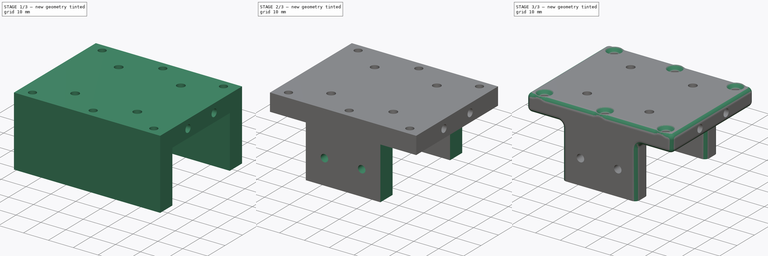
[diagram: build sequence overview — one tinted view per stage of 3, left to right]
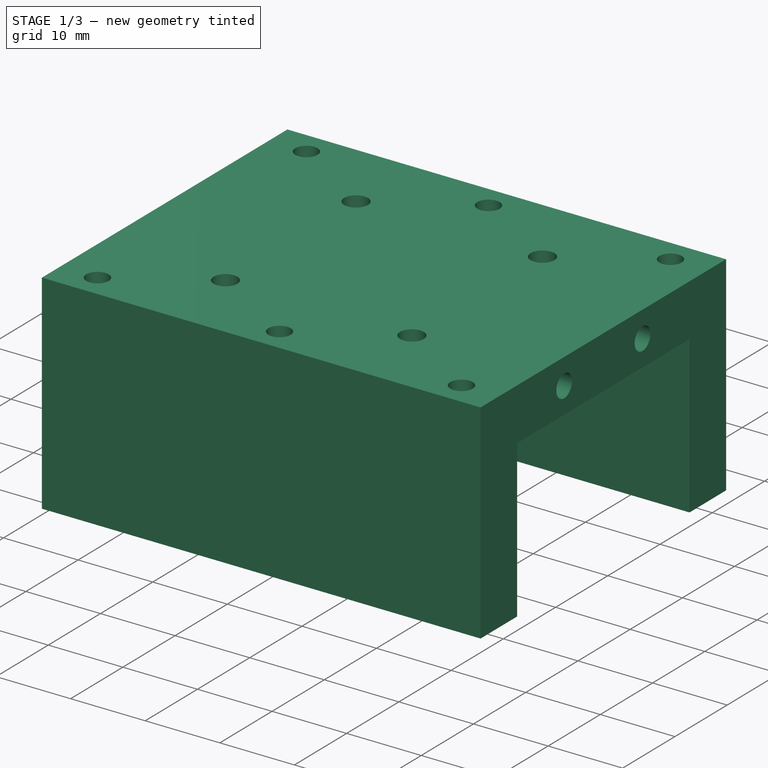
[diagram: stage 1 of 3 — iso view after this stage's code; geometry added in this stage tinted green]
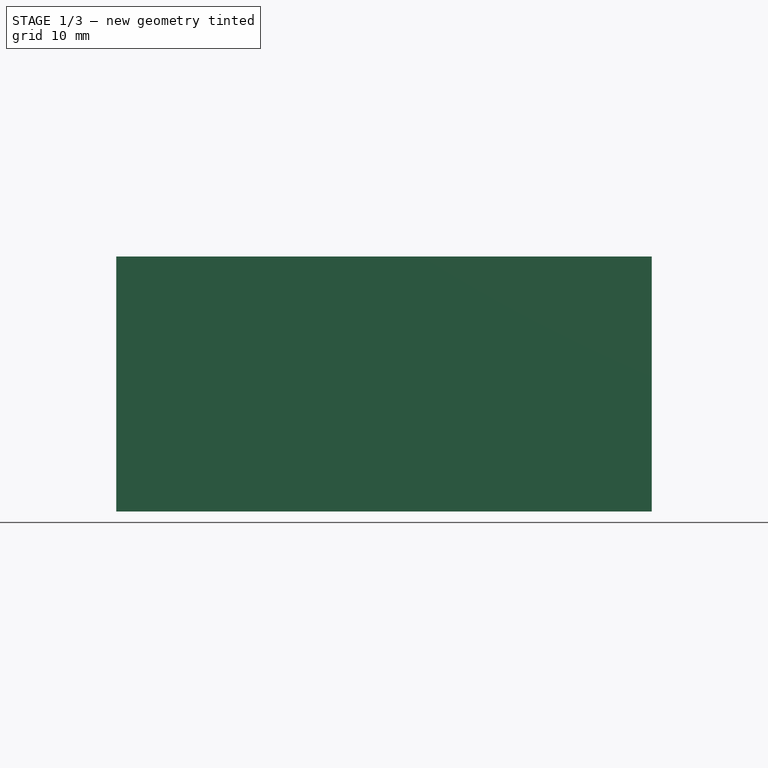
[diagram: stage 1 of 3 — front view after this stage's code; geometry added in this stage tinted green]
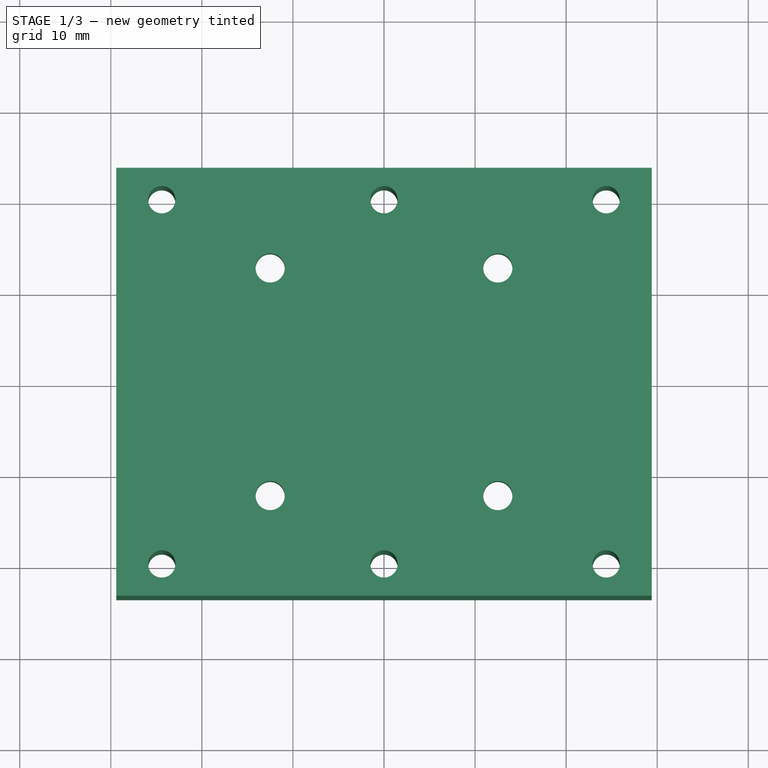
[diagram: stage 1 of 3 — top view after this stage's code; geometry added in this stage tinted green]
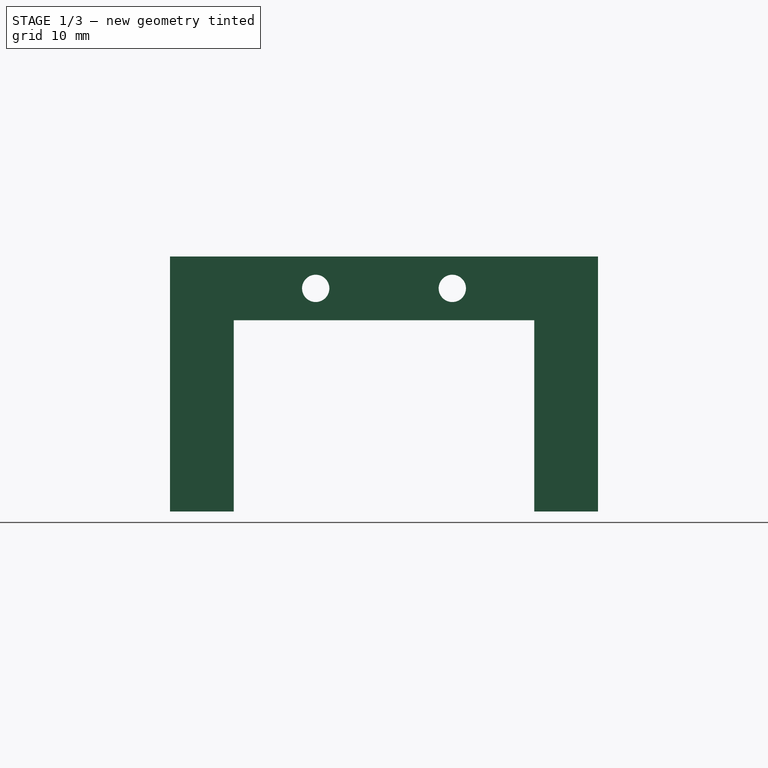
[diagram: stage 1 of 3 — right view after this stage's code; geometry added in this stage tinted green]
FCSTD DOCUMENT  (FreeCAD 1.1R38794 (Git))
Label: z_holder_2
License: All rights reserved
LicenseURL: https://en.wikipedia.org/wiki/All_rights_reserved
objects: Sketcher::SketchObject×4, PartDesign::Pocket×3, App::Link×1, PartDesign::Pad×1, PartDesign::Chamfer×1, PartDesign::Fillet×1, PartDesign::Body×1
note: 27 computed .brp shape members not serialized (recipe doc carries the construction recipe); baked Part::Feature solids carry a one-line shape summary decoded from their .brp
EXTERNAL_REF file=Masterfile.FCStd obj=Spreadsheet

FEATURE [App::Link] Link  label="LinkDimensions"
  LinkedObject = -> <external Masterfile.FCStd>#Spreadsheet
FEATURE [Sketcher::SketchObject] Sketch
  ArcFitTolerance = 1e-06
  AttachmentSupport = -> [XY_Plane]
  FullyConstrained = true
  MakeInternals = false
  MapMode = 5
  expr: Constraints[19] = <<LinkDimensions>>.railCarrierHandle
  expr: Constraints[20] = <<LinkDimensions>>.railCarrierHandle
  expr: Constraints[25] = <<LinkDimensions>>.drillDiameter + 0.2
  expr: Constraints[39] = <<LinkDimensions>>.zhThickness / 2
  expr: Constraints[44] = <<LinkDimensions>>.drillDiameter
  expr: Constraints[8] = <<LinkDimensions>>.zhOutherLength
  expr: Constraints[9] = <<LinkDimensions>>.zhOutherWidth
  sketch-geometry (22):
    g0: LineSegment StartX=-29.4 StartY=23.5 StartZ=0 EndX=-29.4 EndY=-23.5 EndZ=0
    g1: LineSegment StartX=-29.4 StartY=-23.5 StartZ=0 EndX=29.4 EndY=-23.5 EndZ=0
    g2: LineSegment StartX=29.4 StartY=-23.5 StartZ=0 EndX=29.4 EndY=23.5 EndZ=0
    g3: LineSegment StartX=29.4 StartY=23.5 StartZ=0 EndX=-29.4 EndY=23.5 EndZ=0
    g4: LineSegment [constr] StartX=-12.5 StartY=12.5 StartZ=0 EndX=-12.5 EndY=-12.5 EndZ=0
    g5: LineSegment [constr] StartX=-12.5 StartY=-12.5 StartZ=0 EndX=12.5 EndY=-12.5 EndZ=0
    g6: LineSegment [constr] StartX=12.5 StartY=-12.5 StartZ=0 EndX=12.5 EndY=12.5 EndZ=0
    g7: LineSegment [constr] StartX=12.5 StartY=12.5 StartZ=0 EndX=-12.5 EndY=12.5 EndZ=0
    g8: Circle CenterX=-12.5 CenterY=12.5 CenterZ=0 NormalX=0 NormalY=0 NormalZ=1 AngleXU=0 Radius=1.6
    g9: Circle CenterX=12.5 CenterY=12.5 CenterZ=0 NormalX=0 NormalY=0 NormalZ=1 AngleXU=0 Radius=1.6
    g10: Circle CenterX=12.5 CenterY=-12.5 CenterZ=0 NormalX=0 NormalY=0 NormalZ=1 AngleXU=0 Radius=1.6
    g11: Circle CenterX=-12.5 CenterY=-12.5 CenterZ=0 NormalX=0 NormalY=0 NormalZ=1 AngleXU=0 Radius=1.6
    g12: LineSegment [constr] StartX=-24.4 StartY=20 StartZ=0 EndX=-24.4 EndY=-20 EndZ=0
    g13: LineSegment [constr] StartX=-24.4 StartY=-20 StartZ=0 EndX=24.4 EndY=-20 EndZ=0
    g14: LineSegment [constr] StartX=24.4 StartY=-20 StartZ=0 EndX=24.4 EndY=20 EndZ=0
    g15: LineSegment [constr] StartX=24.4 StartY=20 StartZ=0 EndX=-24.4 EndY=20 EndZ=0
    g16: Circle CenterX=-24.4 CenterY=20 CenterZ=0 NormalX=0 NormalY=0 NormalZ=1 AngleXU=0 Radius=1.5
    g17: Circle CenterX=24.4 CenterY=20 CenterZ=0 NormalX=0 NormalY=0 NormalZ=1 AngleXU=0 Radius=1.5
    g18: Circle CenterX=24.4 CenterY=-20 CenterZ=0 NormalX=0 NormalY=0 NormalZ=1 AngleXU=0 Radius=1.5
    g19: Circle CenterX=-24.4 CenterY=-20 CenterZ=0 NormalX=0 NormalY=0 NormalZ=1 AngleXU=0 Radius=1.5
    g20: Circle CenterX=0 CenterY=20 CenterZ=0 NormalX=0 NormalY=0 NormalZ=1 AngleXU=0 Radius=1.5
    g21: Circle CenterX=0 CenterY=-20 CenterZ=0 NormalX=0 NormalY=0 NormalZ=1 AngleXU=0 Radius=1.5
  constraints (54):
    c: Coincident(g0,g1)
    c: Coincident(g1,g2)
    c: Coincident(g2,g3)
    c: Coincident(g3,g0)
    c: Vertical(g0)
    c: Horizontal(g1)
    c: Symmetric(g0,g2,g-2)
    c: Symmetric(g2,g1,g-1)
    c: DistanceX(g3,g3) = 58.8
    c: DistanceY(g2,g2) = 47
    c: Coincident(g4,g5)
    c: Coincident(g5,g6)
    c: Coincident(g6,g7)
    c: Coincident(g7,g4)
    c: Vertical(g4)
    c: Vertical(g6)
    c: Horizontal(g5)
    c: Horizontal(g7)
    c: Symmetric(g4,g6,g-1)
    c: DistanceX(g7,g7) = 25
    c: DistanceY(g6,g6) = 25
    c: Coincident(g8,g4)
    c: Coincident(g9,g6)
    c: Coincident(g10,g5)
    c: Coincident(g11,g4)
    c: Diameter(g11) = 3.2
    c: Equal(g11,g10)
    c: Equal(g10,g9)
    c: Equal(g9,g8)
    c: Coincident(g12,g13)
    c: Coincident(g13,g14)
    c: Coincident(g14,g15)
    c: Coincident(g15,g12)
    c: Vertical(g12)
    c: Vertical(g14)
    c: Horizontal(g13)
    c: Horizontal(g15)
    c: Symmetric(g12,g14,g-1)
    c: DistanceX(g0,g12) = 5
    c: DistanceY(g14,g2) = 3.5
    c: Coincident(g16,g12)
    c: Coincident(g17,g14)
    c: Coincident(g18,g13)
    c: Coincident(g19,g12)
    c: Diameter(g19) = 3
    c: Equal(g19,g18)
    c: Equal(g18,g16)
    c: Equal(g16,g17)
    c: PointOnObject(g20,g-2)
    c: PointOnObject(g21,g-2)
    c: Equal(g20,g21)
    c: Equal(g21,g18)
    c: PointOnObject(g21,g13)
    c: PointOnObject(g20,g15)
FEATURE [PartDesign::Pad] Pad
  Direction = (0,0,1)
  Length = 28
  Length2 = 10
  Profile = -> Sketch
  ReferenceAxis = -> Sketch [N_Axis]
  Refine = true
  Suppressed = false
  Type = 0
  expr: Length = <<LinkDimensions>>.zhThickness + 21
FEATURE [Sketcher::SketchObject] Sketch001
  ArcFitTolerance = 1e-06
  AttachmentSupport = -> [Pad]
  ExternalGeometry = -> [Pad]
  FullyConstrained = false
  MakeInternals = false
  MapMode = 5
  Placement = pos=(-29.4,0,0) rot=(0.57735,-0.57735,-0.57735;2.0944rad)
  expr: Constraints[10] = 21
  expr: Constraints[12] = <<LinkDimensions>>.zhThickness / 2
  expr: Constraints[16] = <<LinkDimensions>>.drillDiameter
  expr: Constraints[9] = <<LinkDimensions>>.zhInnerWidth
  sketch-geometry (7):
    g0: LineSegment StartX=-16.5 StartY=0 StartZ=0 EndX=16.5 EndY=2e-16 EndZ=0
    g1: LineSegment StartX=16.5 StartY=2e-16 StartZ=0 EndX=16.5 EndY=21 EndZ=0
    g2: LineSegment StartX=16.5 StartY=21 StartZ=0 EndX=-16.5 EndY=21 EndZ=0
    g3: LineSegment StartX=-16.5 StartY=21 StartZ=0 EndX=-16.5 EndY=0 EndZ=0
    g4: LineSegment [constr] StartX=-26.1955 StartY=24.5 StartZ=0 EndX=31.9012 EndY=24.5 EndZ=0
    g5: Circle CenterX=-7.5 CenterY=24.5 CenterZ=0 NormalX=0 NormalY=0 NormalZ=1 AngleXU=0 Radius=1.5
    g6: Circle CenterX=7.5 CenterY=24.5 CenterZ=0 NormalX=0 NormalY=0 NormalZ=1 AngleXU=0 Radius=1.5
  constraints (18):
    c: Coincident(g0,g1)
    c: Coincident(g1,g2)
    c: Coincident(g2,g3)
    c: Coincident(g3,g0)
    c: Horizontal(g2)
    c: Vertical(g1)
    c: Vertical(g3)
    c: PointOnObject(g0,g-1)
    c: Symmetric(g0,g0,g-2)
    c: DistanceX(g2,g2) = 33
    c: DistanceY(g1,g1) = 21
    c: Horizontal(g4)
    c: DistanceY(g4,g-3) = 3.5
    c: PointOnObject(g5,g4)
    c: Symmetric(g5,g6,g-2)
    c: Equal(g5,g6)
    c: Diameter(g5) = 3
    c: DistanceX(g5,g6) = 15
FEATURE [PartDesign::Pocket] Pocket
  BaseFeature = -> Pad
  Direction = (1,0,0)
  Length = 5
  Length2 = 5
  Profile = -> Sketch001
  ReferenceAxis = -> Sketch001 [N_Axis]
  Refine = true
  Suppressed = false
  Type = 1
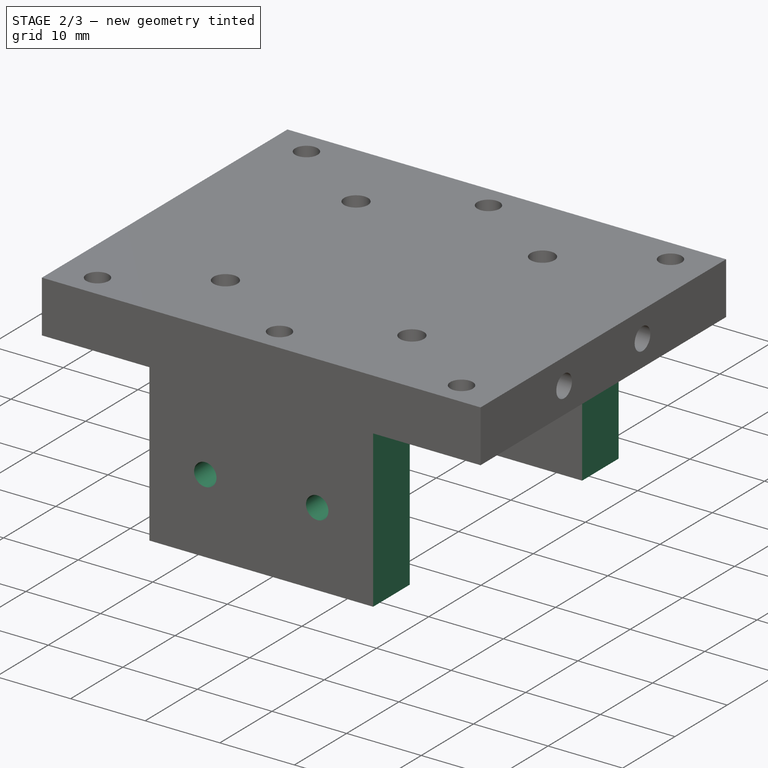
[diagram: stage 2 of 3 — iso view after this stage's code; geometry added in this stage tinted green]
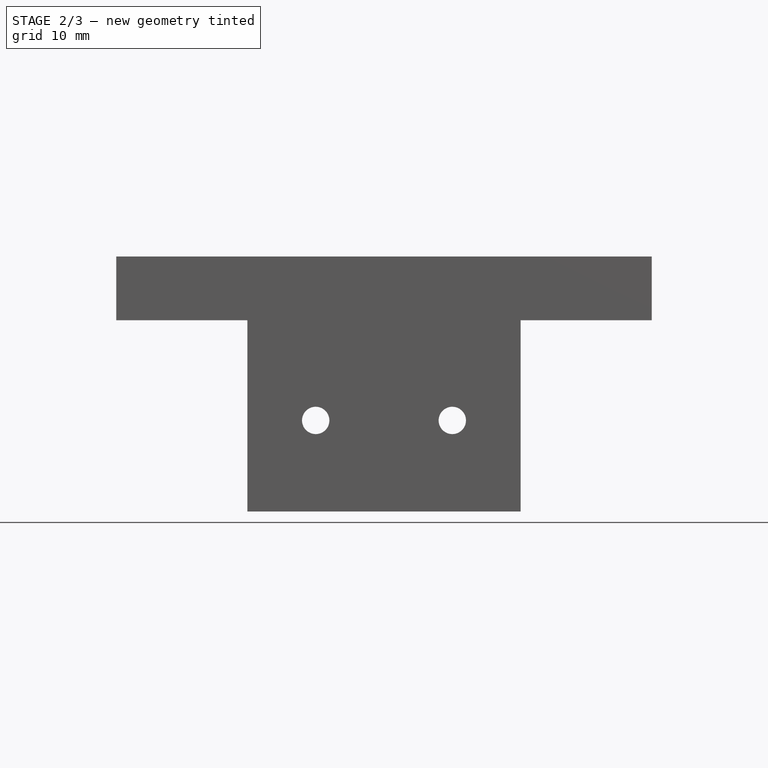
[diagram: stage 2 of 3 — front view after this stage's code; geometry added in this stage tinted green]
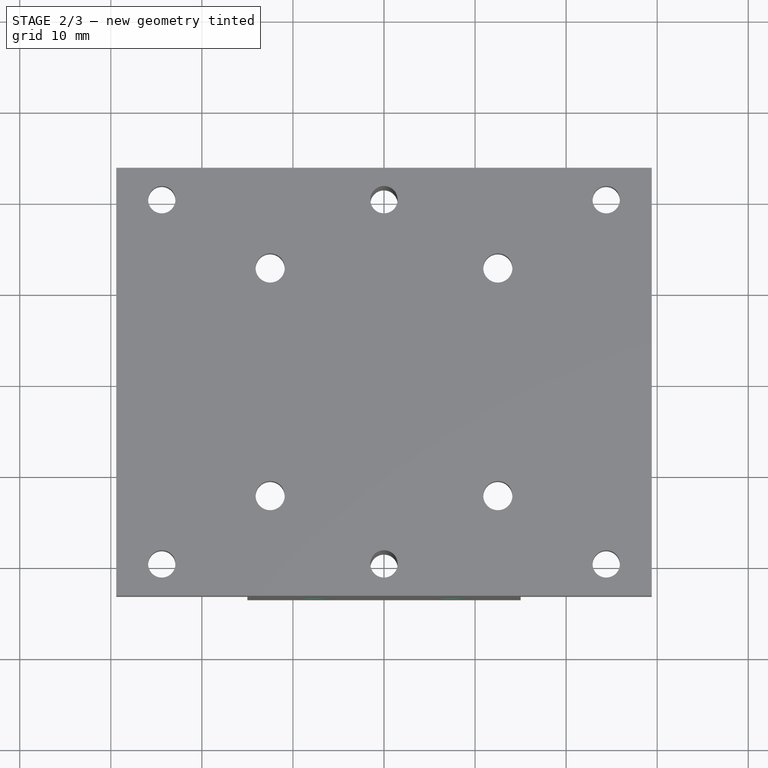
[diagram: stage 2 of 3 — top view after this stage's code; geometry added in this stage tinted green]
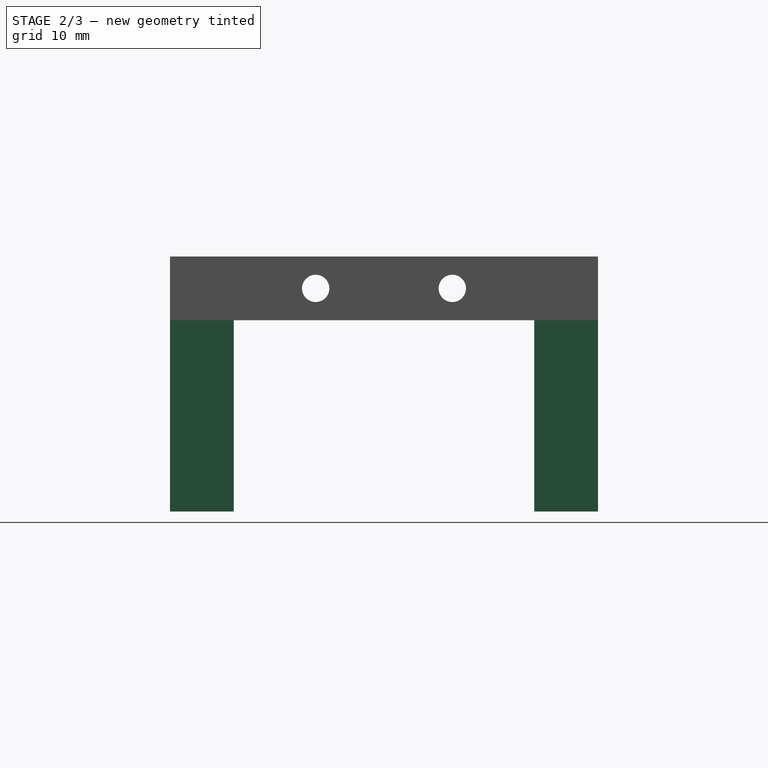
[diagram: stage 2 of 3 — right view after this stage's code; geometry added in this stage tinted green]
FEATURE [Sketcher::SketchObject] Sketch002
  ArcFitTolerance = 1e-06
  AttachmentSupport = -> [Pocket]
  FullyConstrained = true
  MakeInternals = false
  MapMode = 5
  Placement = pos=(0,-23.5,0) rot=(1,0,0;1.5708rad)
  expr: Constraints[14] = <<LinkDimensions>>.drillDiameter
  sketch-geometry (6):
    g0: LineSegment [constr] StartX=-7.5 StartY=0 StartZ=0 EndX=7.5 EndY=0 EndZ=0
    g1: LineSegment [constr] StartX=7.5 StartY=0 StartZ=0 EndX=7.5 EndY=10 EndZ=0
    g2: LineSegment [constr] StartX=7.5 StartY=10 StartZ=0 EndX=-7.5 EndY=10 EndZ=0
    g3: LineSegment [constr] StartX=-7.5 StartY=10 StartZ=0 EndX=-7.5 EndY=0 EndZ=0
    g4: Circle CenterX=-7.5 CenterY=10 CenterZ=0 NormalX=0 NormalY=0 NormalZ=1 AngleXU=0 Radius=1.5
    g5: Circle CenterX=7.5 CenterY=10 CenterZ=0 NormalX=0 NormalY=0 NormalZ=1 AngleXU=0 Radius=1.5
  constraints (15):
    c: Coincident(g0,g1)
    c: Coincident(g1,g2)
    c: Coincident(g2,g3)
    c: Coincident(g3,g0)
    c: Horizontal(g2)
    c: Vertical(g1)
    c: Vertical(g3)
    c: PointOnObject(g0,g-1)
    c: DistanceY(g1,g1) = 10
    c: DistanceX(g2,g2) = 15
    c: Symmetric(g0,g0,g-2)
    c: Coincident(g4,g2)
    c: Coincident(g5,g1)
    c: Equal(g4,g5)
    c: Diameter(g5) = 3
FEATURE [PartDesign::Pocket] Pocket001
  BaseFeature = -> Pocket
  Direction = (0,1,-2e-16)
  Length = 5
  Length2 = 5
  Profile = -> Sketch002
  ReferenceAxis = -> Sketch002 [N_Axis]
  Refine = true
  Suppressed = false
  Type = 1
FEATURE [Sketcher::SketchObject] Sketch003
  ArcFitTolerance = 1e-06
  AttachmentSupport = -> [Pocket001]
  FullyConstrained = false
  MakeInternals = false
  MapMode = 5
  Placement = pos=(0,-23.5,0) rot=(1,0,0;1.5708rad)
  sketch-geometry (8):
    g0: LineSegment StartX=-38.9656 StartY=0 StartZ=0 EndX=-15 EndY=0 EndZ=0
    g1: LineSegment StartX=-15 StartY=0 StartZ=0 EndX=-15 EndY=21 EndZ=0
    g2: LineSegment StartX=-15 StartY=21 StartZ=0 EndX=-38.9656 EndY=21 EndZ=0
    g3: LineSegment StartX=-38.9656 StartY=21 StartZ=0 EndX=-38.9656 EndY=0 EndZ=0
    g4: LineSegment StartX=41.0344 StartY=0 StartZ=0 EndX=41.0344 EndY=21 EndZ=0
    g5: LineSegment StartX=41.0344 StartY=21 StartZ=0 EndX=15 EndY=21 EndZ=0
    g6: LineSegment StartX=15 StartY=21 StartZ=0 EndX=15 EndY=0 EndZ=0
    g7: LineSegment StartX=15 StartY=0 StartZ=0 EndX=41.0344 EndY=0 EndZ=0
  constraints (22):
    c: Coincident(g0,g1)
    c: Coincident(g1,g2)
    c: Coincident(g2,g3)
    c: Coincident(g3,g0)
    c: Horizontal(g0)
    c: Horizontal(g2)
    c: Vertical(g1)
    c: Vertical(g3)
    c: PointOnObject(g0,g-1)
    c: Coincident(g4,g5)
    c: Coincident(g5,g6)
    c: Coincident(g6,g7)
    c: Coincident(g7,g4)
    c: Vertical(g4)
    c: Vertical(g6)
    c: Horizontal(g5)
    c: Horizontal(g7)
    c: PointOnObject(g4,g-1)
    c: Symmetric(g1,g5,g-2)
    c: DistanceX(g0,g6) = 30
    c: DistanceY(g4,g4) = 21
    c: DistanceX(g0,g4) = 80
FEATURE [PartDesign::Pocket] Pocket002
  BaseFeature = -> Pocket001
  Direction = (0,1,-2e-16)
  Length = 5
  Length2 = 5
  Profile = -> Sketch003
  ReferenceAxis = -> Sketch003 [N_Axis]
  Refine = true
  Suppressed = false
  Type = 1
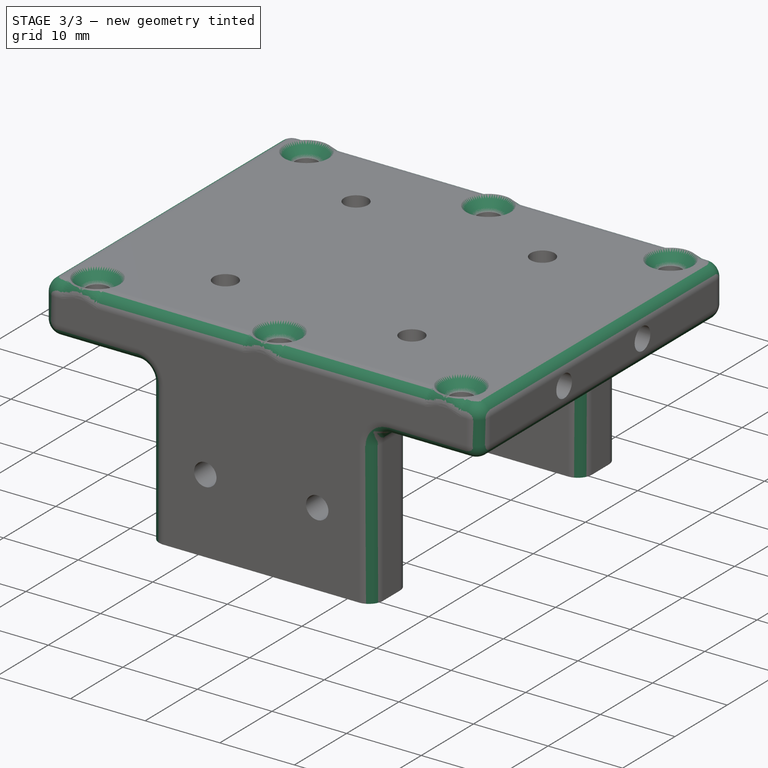
[diagram: stage 3 of 3 — iso view after this stage's code; geometry added in this stage tinted green]
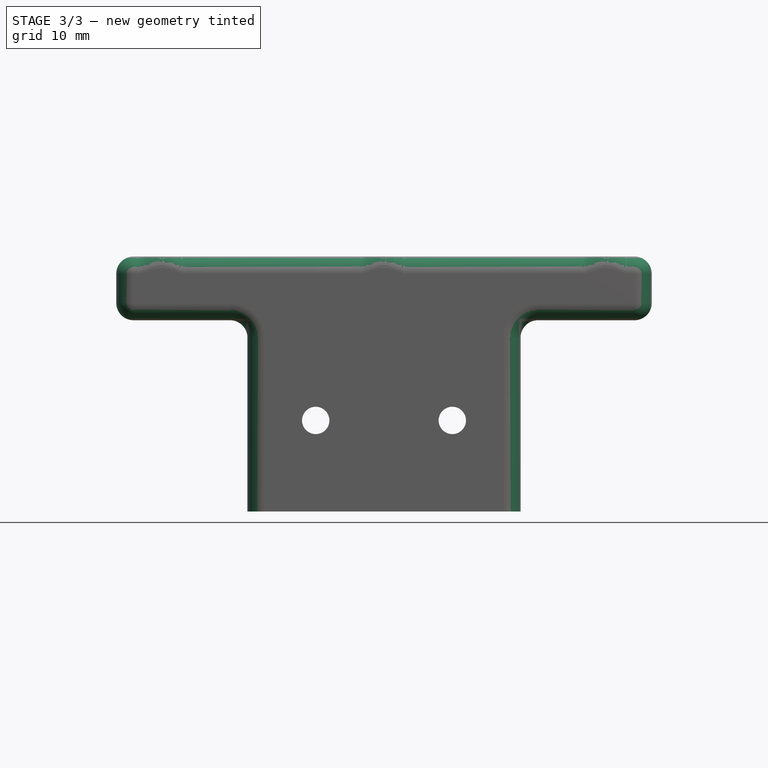
[diagram: stage 3 of 3 — front view after this stage's code; geometry added in this stage tinted green]
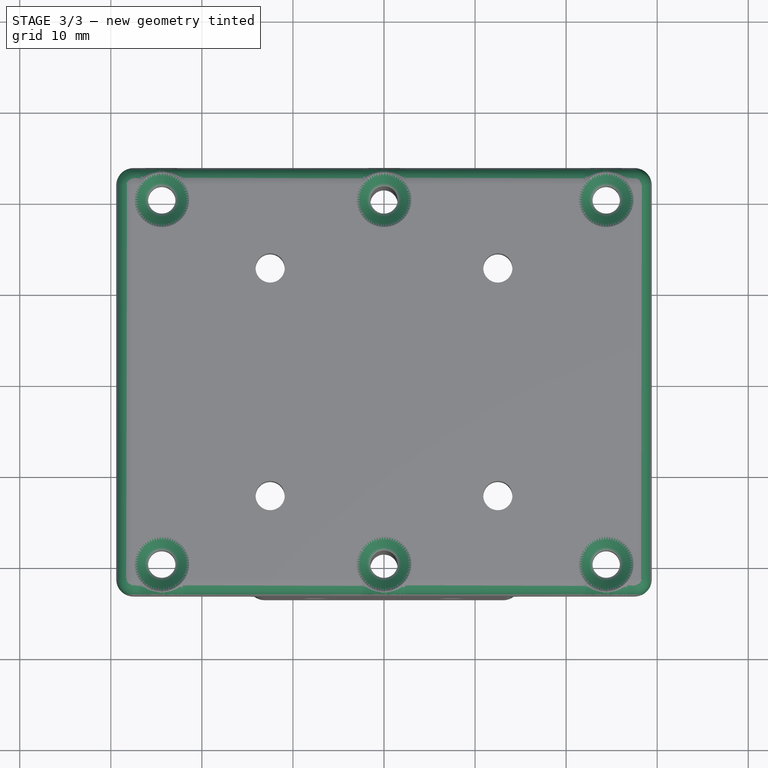
[diagram: stage 3 of 3 — top view after this stage's code; geometry added in this stage tinted green]
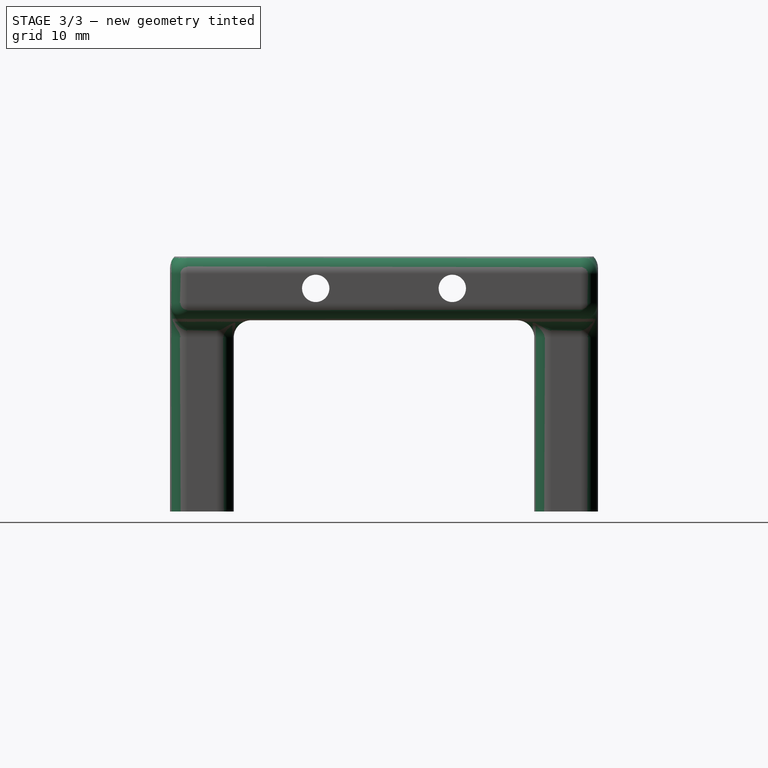
[diagram: stage 3 of 3 — right view after this stage's code; geometry added in this stage tinted green]
FEATURE [PartDesign::Chamfer] Chamfer
  Angle = 45
  Base = -> Pocket002 [Edge24,Edge27,Edge25,Edge22,Edge26,Edge23]
  BaseFeature = -> Pocket002
  ChamferType = 0
  FlipDirection = false
  Refine = true
  Size = 1.5
  Size2 = 1
  SupportTransform = false
  Suppressed = false
  UseAllEdges = false
FEATURE [PartDesign::Fillet] Fillet
  Base = -> Chamfer [Edge3,Edge4,Edge5,Edge2,Edge18,Edge17,Edge19,Edge22,Edge23,Edge72,Edge87,Edge37,Edge25,Edge26,Edge30,Edge27,Edge31,Edge34,Edge77,Edge82,Edge35,Edge38,Edge61,Edge65,Edge66,Edge64,Edge63,Edge62]
  BaseFeature = -> Chamfer
  Radius = 1.9
  Refine = true
  SupportTransform = false
  Suppressed = false
  UseAllEdges = false
FEATURE [PartDesign::Body] Body
  AllowCompound = false
  Group = -> [Sketch,Pad,Sketch001,Pocket,Sketch002,Pocket001,Sketch003,Pocket002,Chamfer,Fillet]
  Origin = -> Origin
  Tip = -> Fillet
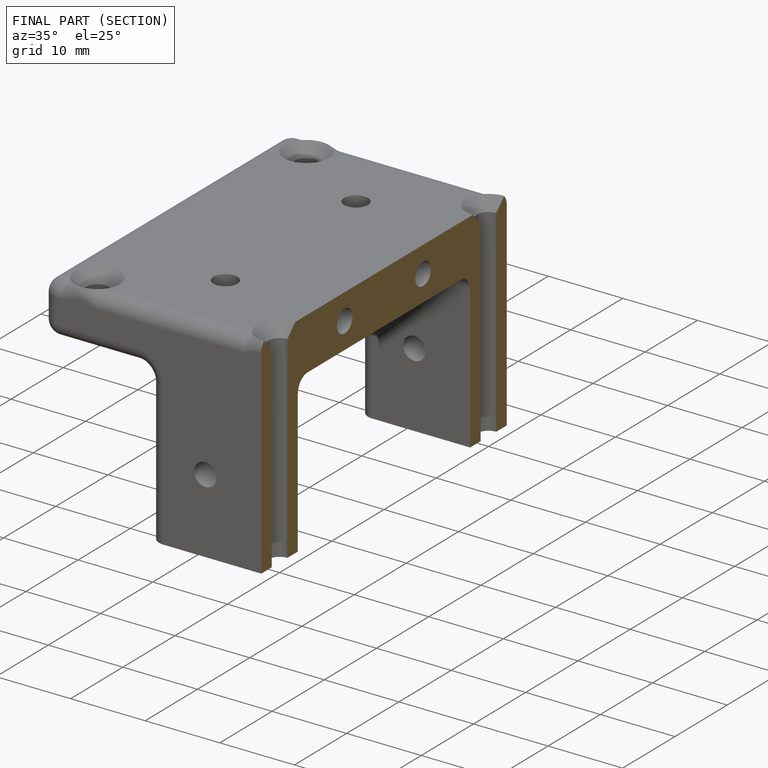
[diagram: finished part — half-section view (interior)]
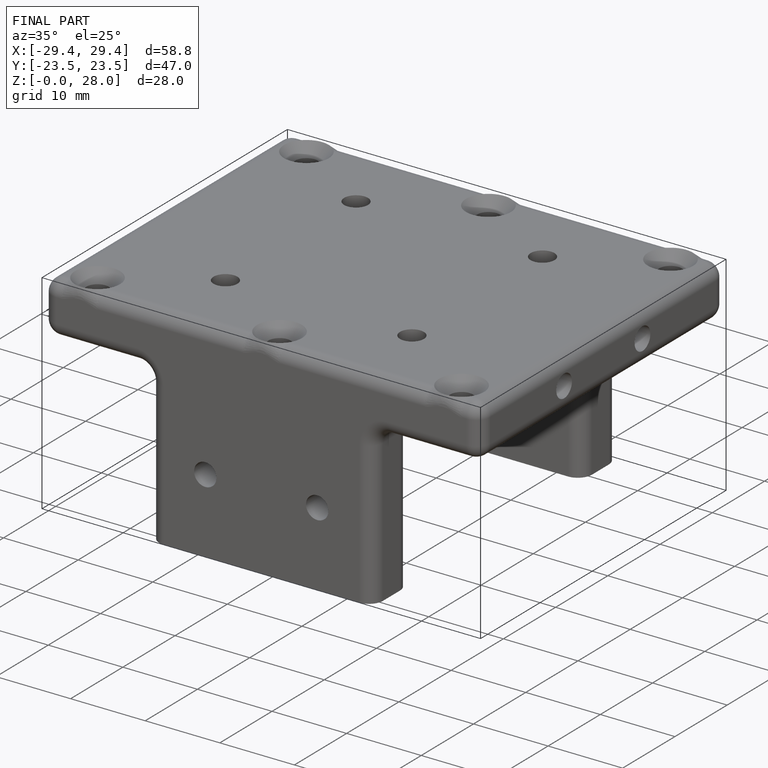
[diagram: finished part — iso view with bounding-box wireframe]
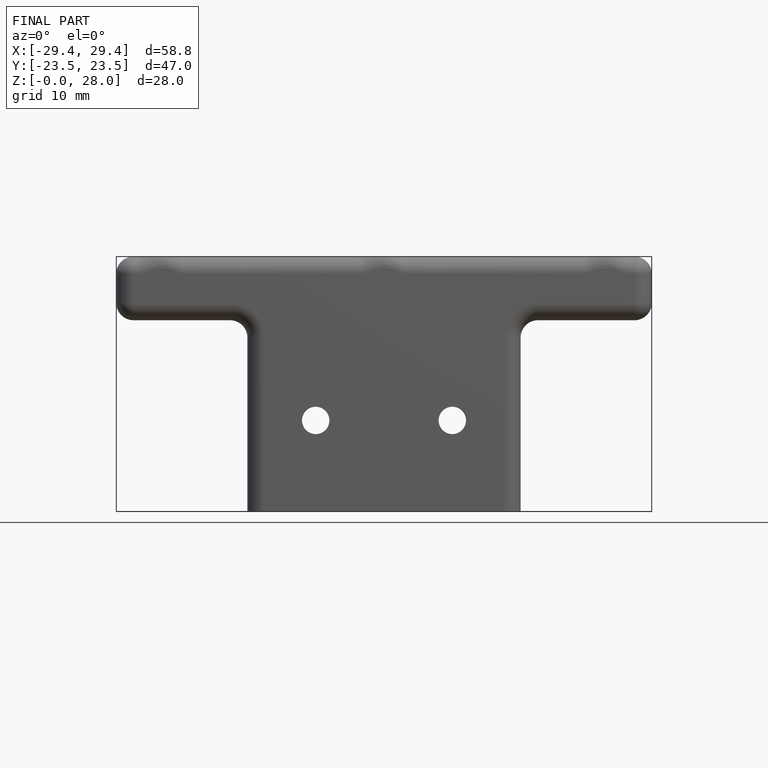
[diagram: finished part — front view with bounding-box wireframe]
